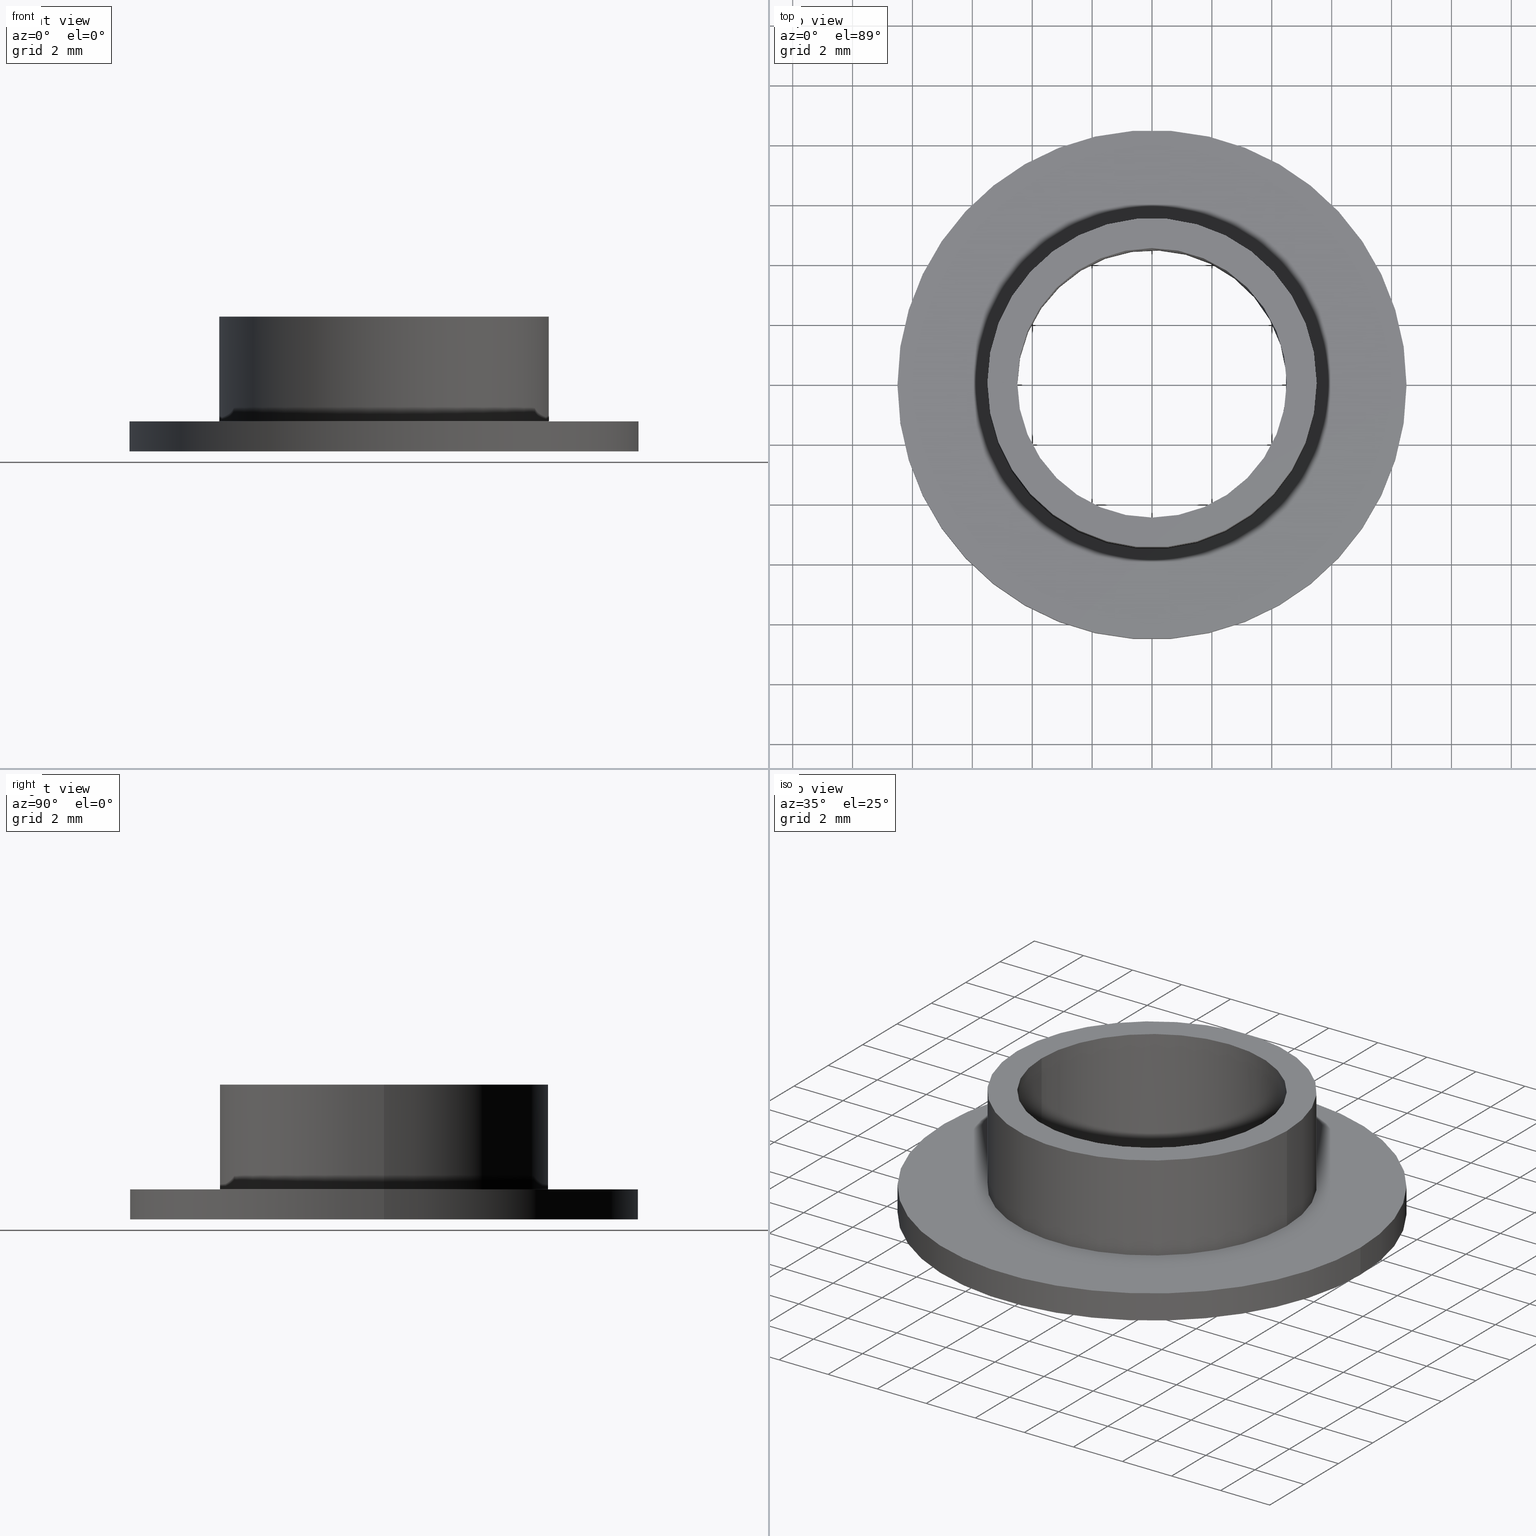
[diagram: canonical four-view strip — front | top / right | iso, engineering-drawing reading convention]
A machine part, canonical four-view strip (front | top / right | iso — engineering-drawing reading convention). The complete STEP part file that produces these views, byte-faithful:
ISO-10303-21;
HEADER;
/* Generated by software containing ST-Developer
 * from STEP Tools, Inc. (www.steptools.com) 
 */

FILE_DESCRIPTION(
/* description */ ('DISTANZIALE - GOMMINO D.6.5'),
/* implementation_level */ '2;1');

FILE_NAME(
/* name */ 
'Q:\\Catalogo\\3_Profili e accessori MACAP\\Per Download Web e catalog
o artaceo\\ACCESSORI\\PAGINA 48 NEW\\DDIXX0000079 - XT90151.stp',
/* time_stamp */ '2019-12-16T16:38:16+01:00',
/* author */ ('fzagni'),
/* organization */ (''),
/* preprocessor_version */ 'ST-DEVELOPER v17.2',
/* originating_system */ 'Autodesk Inventor 2019',
/* authorisation */ '');

FILE_SCHEMA (('AUTOMOTIVE_DESIGN { 1 0 10303 214 3 1 1 }'));
ENDSEC;

DATA;
#10=MECHANICAL_DESIGN_GEOMETRIC_PRESENTATION_REPRESENTATION('',(#13),#186);
#11=SHAPE_REPRESENTATION_RELATIONSHIP('SRR','None',#193,#12);
#12=ADVANCED_BREP_SHAPE_REPRESENTATION('',(#14),#185);
#13=STYLED_ITEM('',(#202),#14);
#14=MANIFOLD_SOLID_BREP('Solido1',#95);
#15=FACE_BOUND('',#30,.T.);
#16=FACE_BOUND('',#33,.T.);
#17=FACE_BOUND('',#35,.T.);
#18=PLANE('',#122);
#19=PLANE('',#126);
#20=PLANE('',#127);
#21=FACE_OUTER_BOUND('',#27,.T.);
#22=FACE_OUTER_BOUND('',#28,.T.);
#23=FACE_OUTER_BOUND('',#29,.T.);
#24=FACE_OUTER_BOUND('',#31,.T.);
#25=FACE_OUTER_BOUND('',#32,.T.);
#26=FACE_OUTER_BOUND('',#34,.T.);
#27=EDGE_LOOP('',(#66,#67,#68,#69,#70));
#28=EDGE_LOOP('',(#71,#72,#73,#74));
#29=EDGE_LOOP('',(#75));
#30=EDGE_LOOP('',(#76,#77));
#31=EDGE_LOOP('',(#78,#79,#80,#81));
#32=EDGE_LOOP('',(#82));
#33=EDGE_LOOP('',(#83));
#34=EDGE_LOOP('',(#84));
#35=EDGE_LOOP('',(#85));
#36=LINE('',#166,#39);
#37=LINE('',#172,#40);
#38=LINE('',#179,#41);
#39=VECTOR('',#136,4.5);
#40=VECTOR('',#143,5.5);
#41=VECTOR('',#152,8.5);
#42=CIRCLE('',#116,4.5);
#43=CIRCLE('',#117,4.5);
#44=CIRCLE('',#118,4.5);
#45=CIRCLE('',#120,5.5);
#46=CIRCLE('',#121,5.5);
#47=CIRCLE('',#124,8.5);
#48=CIRCLE('',#125,8.5);
#49=VERTEX_POINT('',#161);
#50=VERTEX_POINT('',#162);
#51=VERTEX_POINT('',#165);
#52=VERTEX_POINT('',#169);
#53=VERTEX_POINT('',#171);
#54=VERTEX_POINT('',#176);
#55=VERTEX_POINT('',#178);
#56=EDGE_CURVE('',#49,#50,#42,.T.);
#57=EDGE_CURVE('',#50,#49,#43,.T.);
#58=EDGE_CURVE('',#50,#51,#36,.T.);
#59=EDGE_CURVE('',#51,#51,#44,.T.);
#60=EDGE_CURVE('',#52,#52,#45,.T.);
#61=EDGE_CURVE('',#52,#53,#37,.T.);
#62=EDGE_CURVE('',#53,#53,#46,.T.);
#63=EDGE_CURVE('',#54,#54,#47,.T.);
#64=EDGE_CURVE('',#54,#55,#38,.T.);
#65=EDGE_CURVE('',#55,#55,#48,.T.);
#66=ORIENTED_EDGE('',*,*,#56,.F.);
#67=ORIENTED_EDGE('',*,*,#57,.F.);
#68=ORIENTED_EDGE('',*,*,#58,.T.);
#69=ORIENTED_EDGE('',*,*,#59,.F.);
#70=ORIENTED_EDGE('',*,*,#58,.F.);
#71=ORIENTED_EDGE('',*,*,#60,.F.);
#72=ORIENTED_EDGE('',*,*,#61,.T.);
#73=ORIENTED_EDGE('',*,*,#62,.F.);
#74=ORIENTED_EDGE('',*,*,#61,.F.);
#75=ORIENTED_EDGE('',*,*,#60,.T.);
#76=ORIENTED_EDGE('',*,*,#56,.T.);
#77=ORIENTED_EDGE('',*,*,#57,.T.);
#78=ORIENTED_EDGE('',*,*,#63,.F.);
#79=ORIENTED_EDGE('',*,*,#64,.T.);
#80=ORIENTED_EDGE('',*,*,#65,.F.);
#81=ORIENTED_EDGE('',*,*,#64,.F.);
#82=ORIENTED_EDGE('',*,*,#65,.T.);
#83=ORIENTED_EDGE('',*,*,#59,.T.);
#84=ORIENTED_EDGE('',*,*,#63,.T.);
#85=ORIENTED_EDGE('',*,*,#62,.T.);
#86=CYLINDRICAL_SURFACE('',#115,4.5);
#87=CYLINDRICAL_SURFACE('',#119,5.5);
#88=CYLINDRICAL_SURFACE('',#123,8.5);
#89=ADVANCED_FACE('',(#21),#86,.F.);
#90=ADVANCED_FACE('',(#22),#87,.T.);
#91=ADVANCED_FACE('',(#23,#15),#18,.T.);
#92=ADVANCED_FACE('',(#24),#88,.T.);
#93=ADVANCED_FACE('',(#25,#16),#19,.F.);
#94=ADVANCED_FACE('',(#26,#17),#20,.T.);
#95=CLOSED_SHELL('',(#89,#90,#91,#92,#93,#94));
#96=DERIVED_UNIT_ELEMENT(#98,1.);
#97=DERIVED_UNIT_ELEMENT(#188,3.);
#98=(
MASS_UNIT()
NAMED_UNIT(*)
SI_UNIT($,.GRAM.)
);
#99=DERIVED_UNIT((#96,#97));
#100=MEASURE_REPRESENTATION_ITEM('density measure',
POSITIVE_RATIO_MEASURE(1.25),#99);
#101=PROPERTY_DEFINITION_REPRESENTATION(#106,#103);
#102=PROPERTY_DEFINITION_REPRESENTATION(#107,#104);
#103=REPRESENTATION('material name',(#105),#185);
#104=REPRESENTATION('density',(#100),#185);
#105=DESCRIPTIVE_REPRESENTATION_ITEM('Silicone','Silicone');
#106=PROPERTY_DEFINITION('material property','material name',#195);
#107=PROPERTY_DEFINITION('material property','density of part',#195);
#108=DATE_TIME_ROLE('creation_date');
#109=APPLIED_DATE_AND_TIME_ASSIGNMENT(#110,#108,(#195));
#110=DATE_AND_TIME(#111,#112);
#111=CALENDAR_DATE(2014,27,3);
#112=LOCAL_TIME(23,0,0.,#113);
#113=COORDINATED_UNIVERSAL_TIME_OFFSET(0,0,.BEHIND.);
#114=AXIS2_PLACEMENT_3D('placement',#159,#128,#129);
#115=AXIS2_PLACEMENT_3D('',#160,#130,#131);
#116=AXIS2_PLACEMENT_3D('',#163,#132,#133);
#117=AXIS2_PLACEMENT_3D('',#164,#134,#135);
#118=AXIS2_PLACEMENT_3D('',#167,#137,#138);
#119=AXIS2_PLACEMENT_3D('',#168,#139,#140);
#120=AXIS2_PLACEMENT_3D('',#170,#141,#142);
#121=AXIS2_PLACEMENT_3D('',#173,#144,#145);
#122=AXIS2_PLACEMENT_3D('',#174,#146,#147);
#123=AXIS2_PLACEMENT_3D('',#175,#148,#149);
#124=AXIS2_PLACEMENT_3D('',#177,#150,#151);
#125=AXIS2_PLACEMENT_3D('',#180,#153,#154);
#126=AXIS2_PLACEMENT_3D('',#181,#155,#156);
#127=AXIS2_PLACEMENT_3D('',#182,#157,#158);
#128=DIRECTION('axis',(0.,0.,1.));
#129=DIRECTION('refdir',(1.,0.,0.));
#130=DIRECTION('center_axis',(0.,0.,1.));
#131=DIRECTION('ref_axis',(1.,0.,0.));
#132=DIRECTION('center_axis',(0.,0.,-1.));
#133=DIRECTION('ref_axis',(1.,0.,0.));
#134=DIRECTION('center_axis',(0.,0.,-1.));
#135=DIRECTION('ref_axis',(1.,0.,0.));
#136=DIRECTION('',(0.,0.,-1.));
#137=DIRECTION('center_axis',(0.,0.,1.));
#138=DIRECTION('ref_axis',(1.,0.,0.));
#139=DIRECTION('center_axis',(0.,0.,1.));
#140=DIRECTION('ref_axis',(-1.,0.,0.));
#141=DIRECTION('center_axis',(0.,0.,1.));
#142=DIRECTION('ref_axis',(-1.,0.,0.));
#143=DIRECTION('',(0.,0.,-1.));
#144=DIRECTION('center_axis',(0.,0.,-1.));
#145=DIRECTION('ref_axis',(-1.,0.,0.));
#146=DIRECTION('center_axis',(0.,0.,1.));
#147=DIRECTION('ref_axis',(1.,0.,0.));
#148=DIRECTION('center_axis',(0.,0.,1.));
#149=DIRECTION('ref_axis',(-1.,0.,0.));
#150=DIRECTION('center_axis',(0.,0.,1.));
#151=DIRECTION('ref_axis',(-1.,0.,0.));
#152=DIRECTION('',(0.,0.,-1.));
#153=DIRECTION('center_axis',(0.,0.,-1.));
#154=DIRECTION('ref_axis',(-1.,0.,0.));
#155=DIRECTION('center_axis',(0.,0.,1.));
#156=DIRECTION('ref_axis',(1.,0.,0.));
#157=DIRECTION('center_axis',(0.,0.,1.));
#158=DIRECTION('ref_axis',(1.,0.,0.));
#159=CARTESIAN_POINT('',(0.,0.,0.));
#160=CARTESIAN_POINT('Origin',(0.,0.,-19.95914961727));
#161=CARTESIAN_POINT('',(4.5,0.,4.5));
#162=CARTESIAN_POINT('',(-4.5,-5.51091059616309E-16,4.5));
#163=CARTESIAN_POINT('Origin',(0.,0.,4.5));
#164=CARTESIAN_POINT('Origin',(0.,0.,4.5));
#165=CARTESIAN_POINT('',(-4.5,-5.51091059616309E-16,0.));
#166=CARTESIAN_POINT('',(-4.5,-5.51091059616309E-16,-19.95914961727));
#167=CARTESIAN_POINT('Origin',(0.,0.,0.));
#168=CARTESIAN_POINT('Origin',(0.,0.,1.));
#169=CARTESIAN_POINT('',(5.5,6.73555739531044E-16,4.5));
#170=CARTESIAN_POINT('Origin',(0.,0.,4.5));
#171=CARTESIAN_POINT('',(5.5,6.73555739531044E-16,1.));
#172=CARTESIAN_POINT('',(5.5,6.73555739531044E-16,1.));
#173=CARTESIAN_POINT('Origin',(0.,0.,1.));
#174=CARTESIAN_POINT('Origin',(-2.24345254752611E-16,8.41078048958452E-17,
4.5));
#175=CARTESIAN_POINT('Origin',(0.,0.,0.));
#176=CARTESIAN_POINT('',(8.5,1.04094977927525E-15,1.));
#177=CARTESIAN_POINT('Origin',(0.,0.,1.));
#178=CARTESIAN_POINT('',(8.5,1.04094977927525E-15,0.));
#179=CARTESIAN_POINT('',(8.5,1.04094977927525E-15,0.));
#180=CARTESIAN_POINT('Origin',(0.,0.,0.));
#181=CARTESIAN_POINT('Origin',(-5.22127393223979E-16,-2.17690789142187E-16,
0.));
#182=CARTESIAN_POINT('Origin',(-5.22127393223979E-16,-2.17690789142187E-16,
1.));
#183=UNCERTAINTY_MEASURE_WITH_UNIT(LENGTH_MEASURE(0.01),#187,
'DISTANCE_ACCURACY_VALUE',
'Maximum model space distance between geometric entities at asserted c
onnectivities');
#184=UNCERTAINTY_MEASURE_WITH_UNIT(LENGTH_MEASURE(0.01),#187,
'DISTANCE_ACCURACY_VALUE',
'Maximum model space distance between geometric entities at asserted c
onnectivities');
#185=(
GEOMETRIC_REPRESENTATION_CONTEXT(3)
GLOBAL_UNCERTAINTY_ASSIGNED_CONTEXT((#183))
GLOBAL_UNIT_ASSIGNED_CONTEXT((#187,#189,#190))
REPRESENTATION_CONTEXT('','3D')
);
#186=(
GEOMETRIC_REPRESENTATION_CONTEXT(3)
GLOBAL_UNCERTAINTY_ASSIGNED_CONTEXT((#184))
GLOBAL_UNIT_ASSIGNED_CONTEXT((#187,#189,#190))
REPRESENTATION_CONTEXT('','3D')
);
#187=(
LENGTH_UNIT()
NAMED_UNIT(*)
SI_UNIT(.MILLI.,.METRE.)
);
#188=(
LENGTH_UNIT()
NAMED_UNIT(*)
SI_UNIT(.CENTI.,.METRE.)
);
#189=(
NAMED_UNIT(*)
PLANE_ANGLE_UNIT()
SI_UNIT($,.RADIAN.)
);
#190=(
NAMED_UNIT(*)
SI_UNIT($,.STERADIAN.)
SOLID_ANGLE_UNIT()
);
#191=SHAPE_DEFINITION_REPRESENTATION(#192,#193);
#192=PRODUCT_DEFINITION_SHAPE('',$,#195);
#193=SHAPE_REPRESENTATION('',(#114),#185);
#194=PRODUCT_DEFINITION_CONTEXT('part definition',#199,'design');
#195=PRODUCT_DEFINITION('DDIXX0000079','DDIXX0000079',#196,#194);
#196=PRODUCT_DEFINITION_FORMATION('A',$,#201);
#197=PRODUCT_RELATED_PRODUCT_CATEGORY('DDIXX0000079','DDIXX0000079',(#201));
#198=APPLICATION_PROTOCOL_DEFINITION('international standard',
'automotive_design',2009,#199);
#199=APPLICATION_CONTEXT(
'Core Data for Automotive Mechanical Design Process');
#200=PRODUCT_CONTEXT('part definition',#199,'mechanical');
#201=PRODUCT('DDIXX0000079','DDIXX0000079',
'DISTANZIALE - GOMMINO D.6.5',(#200));
#202=PRESENTATION_STYLE_ASSIGNMENT((#203));
#203=SURFACE_STYLE_USAGE(.BOTH.,#206);
#204=SURFACE_STYLE_RENDERING_WITH_PROPERTIES($,#210,(#205));
#205=SURFACE_STYLE_TRANSPARENT(0.);
#206=SURFACE_SIDE_STYLE('',(#207,#204));
#207=SURFACE_STYLE_FILL_AREA(#208);
#208=FILL_AREA_STYLE('',(#209));
#209=FILL_AREA_STYLE_COLOUR('',#210);
#210=COLOUR_RGB('',0.956862745098039,0.96078431372549,0.964705882352941);
ENDSEC;
END-ISO-10303-21;
